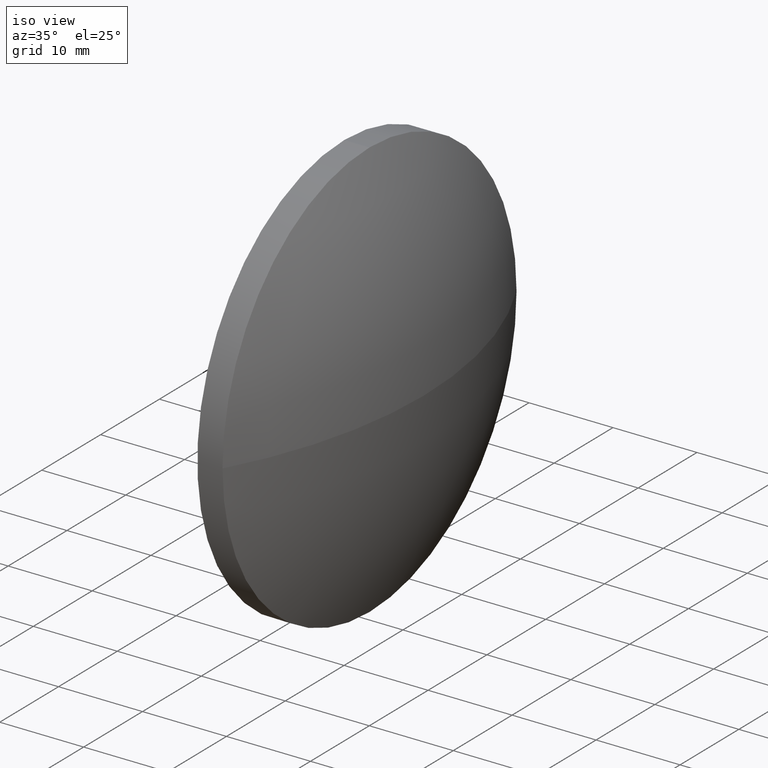
[diagram: clean part render]
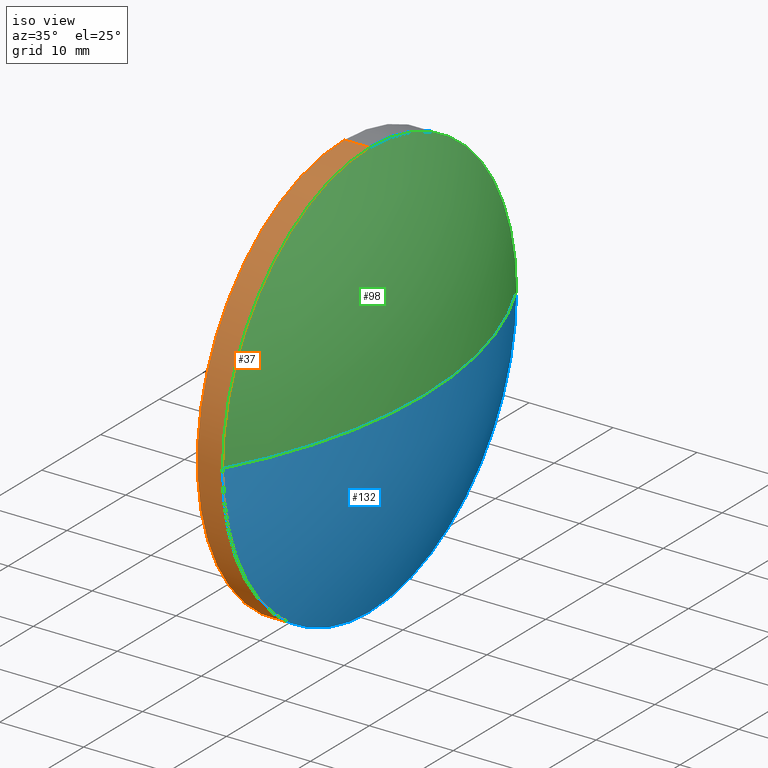
[diagram: same view with three faces highlighted in distinct colors, each labeled with its STEP entity id]
A machine part, iso view with three faces highlighted in distinct colors.
Their STEP definitions:

[orange] entity #37 — the highlighted cylindrical surface (partial cylindrical patch) has radius 25 mm, axis along (-1, -0, -0).
#1 = ORIENTED_EDGE ( 'NONE', *, *, #71, .T. ) ;
#2 = VERTEX_POINT ( 'NONE', #103 ) ;
#3 = CARTESIAN_POINT ( 'NONE',  ( 339.3126948403255500, 9.632589185674763900, -24.99999999999999600 ) ) ;
#5 = CARTESIAN_POINT ( 'NONE',  ( 339.3126948403255500, 9.632589185674760300, 0.0000000000000000000 ) ) ;
#6 = DIRECTION ( 'NONE',  ( -1.000000000000000000, -0.0000000000000000000, -0.0000000000000000000 ) ) ;
#8 = CARTESIAN_POINT ( 'NONE',  ( 346.2844701294416200, -15.36741081432525000, -3.061616997868383800E-015 ) ) ;
#15 = CIRCLE ( 'NONE', #74, 24.99999999999999600 ) ;
#18 = EDGE_CURVE ( 'NONE', #70, #2, #54, .T. ) ;
#26 = DIRECTION ( 'NONE',  ( -1.000000000000000000, -0.0000000000000000000, -0.0000000000000000000 ) ) ;
#29 = DIRECTION ( 'NONE',  ( 0.0000000000000000000, 0.0000000000000000000, 1.000000000000000000 ) ) ;
#32 = EDGE_CURVE ( 'NONE', #159, #133, #89, .T. ) ;
#34 = VECTOR ( 'NONE', #6, 1000.000000000000000 ) ;
#37 = ADVANCED_FACE ( 'NONE', ( #86 ), #67, .T. ) ;
#42 = VECTOR ( 'NONE', #26, 1000.000000000000000 ) ;
#43 = CARTESIAN_POINT ( 'NONE',  ( 343.2844701294416200, 9.632589185674760300, 24.99999999999999600 ) ) ;
#45 = CARTESIAN_POINT ( 'NONE',  ( 346.2844701294416200, 9.632589185674763900, -24.99999999999999600 ) ) ;
#54 = LINE ( 'NONE', #3, #42 ) ;
#60 = CARTESIAN_POINT ( 'NONE',  ( 346.2844701294416200, 9.632589185674760300, 0.0000000000000000000 ) ) ;
#67 = CYLINDRICAL_SURFACE ( 'NONE', #170, 24.99999999999999600 ) ;
#70 = VERTEX_POINT ( 'NONE', #45 ) ;
#71 = EDGE_CURVE ( 'NONE', #70, #159, #15, .T. ) ;
#73 = AXIS2_PLACEMENT_3D ( 'NONE', #157, #115, #29 ) ;
#74 = AXIS2_PLACEMENT_3D ( 'NONE', #176, #106, #129 ) ;
#78 = DIRECTION ( 'NONE',  ( -1.000000000000000000, -0.0000000000000000000, -0.0000000000000000000 ) ) ;
#83 = CARTESIAN_POINT ( 'NONE',  ( 339.3126948403255500, 9.632589185674760300, 24.99999999999999600 ) ) ;
#86 = FACE_OUTER_BOUND ( 'NONE', #172, .T. ) ;
#88 = LINE ( 'NONE', #83, #34 ) ;
#89 = CIRCLE ( 'NONE', #112, 24.99999999999999600 ) ;
#96 = ORIENTED_EDGE ( 'NONE', *, *, #182, .F. ) ;
#101 = ORIENTED_EDGE ( 'NONE', *, *, #18, .F. ) ;
#103 = CARTESIAN_POINT ( 'NONE',  ( 343.2844701294416200, 9.632589185674763900, -24.99999999999999600 ) ) ;
#106 = DIRECTION ( 'NONE',  ( -1.000000000000000000, -0.0000000000000000000, -0.0000000000000000000 ) ) ;
#108 = ORIENTED_EDGE ( 'NONE', *, *, #32, .T. ) ;
#109 = CIRCLE ( 'NONE', #73, 24.99999999999999600 ) ;
#111 = DIRECTION ( 'NONE',  ( 0.0000000000000000000, 0.0000000000000000000, 1.000000000000000000 ) ) ;
#112 = AXIS2_PLACEMENT_3D ( 'NONE', #60, #78, #111 ) ;
#113 = DIRECTION ( 'NONE',  ( 0.0000000000000000000, 0.0000000000000000000, 1.000000000000000000 ) ) ;
#115 = DIRECTION ( 'NONE',  ( -1.000000000000000000, -0.0000000000000000000, -0.0000000000000000000 ) ) ;
#128 = CARTESIAN_POINT ( 'NONE',  ( 346.2844701294416200, 9.632589185674760300, 24.99999999999999600 ) ) ;
#129 = DIRECTION ( 'NONE',  ( 0.0000000000000000000, 0.0000000000000000000, 1.000000000000000000 ) ) ;
#133 = VERTEX_POINT ( 'NONE', #128 ) ;
#139 = VERTEX_POINT ( 'NONE', #43 ) ;
#153 = DIRECTION ( 'NONE',  ( -1.000000000000000000, -0.0000000000000000000, -0.0000000000000000000 ) ) ;
#157 = CARTESIAN_POINT ( 'NONE',  ( 343.2844701294416200, 9.632589185674760300, 0.0000000000000000000 ) ) ;
#159 = VERTEX_POINT ( 'NONE', #8 ) ;
#170 = AXIS2_PLACEMENT_3D ( 'NONE', #5, #153, #113 ) ;
#172 = EDGE_LOOP ( 'NONE', ( #101, #1, #108, #178, #96 ) ) ;
#173 = EDGE_CURVE ( 'NONE', #133, #139, #88, .T. ) ;
#176 = CARTESIAN_POINT ( 'NONE',  ( 346.2844701294416200, 9.632589185674760300, 0.0000000000000000000 ) ) ;
#178 = ORIENTED_EDGE ( 'NONE', *, *, #173, .T. ) ;
#182 = EDGE_CURVE ( 'NONE', #2, #139, #109, .T. ) ;

[blue] entity #132 — the highlighted spherical surface has radius 51.6746 mm.
#7 = CARTESIAN_POINT ( 'NONE',  ( 301.0598577263408500, 9.632589185674756700, 0.0000000000000000000 ) ) ;
#8 = CARTESIAN_POINT ( 'NONE',  ( 346.2844701294416200, -15.36741081432525000, -3.061616997868383800E-015 ) ) ;
#9 = DIRECTION ( 'NONE',  ( -0.0000000000000000000, 0.0000000000000000000, 1.000000000000000000 ) ) ;
#10 = CARTESIAN_POINT ( 'NONE',  ( 346.2844701294416200, 9.632589185674760300, 0.0000000000000000000 ) ) ;
#15 = CIRCLE ( 'NONE', #74, 24.99999999999999600 ) ;
#19 = ORIENTED_EDGE ( 'NONE', *, *, #71, .F. ) ;
#21 = AXIS2_PLACEMENT_3D ( 'NONE', #10, #79, #155 ) ;
#25 = AXIS2_PLACEMENT_3D ( 'NONE', #7, #80, #92 ) ;
#30 = CARTESIAN_POINT ( 'NONE',  ( 301.0598577263408500, 9.632589185674756700, 0.0000000000000000000 ) ) ;
#40 = CIRCLE ( 'NONE', #55, 51.67461240310078100 ) ;
#45 = CARTESIAN_POINT ( 'NONE',  ( 346.2844701294416200, 9.632589185674763900, -24.99999999999999600 ) ) ;
#48 = DIRECTION ( 'NONE',  ( 1.000000000000000000, 0.0000000000000000000, 0.0000000000000000000 ) ) ;
#50 = AXIS2_PLACEMENT_3D ( 'NONE', #30, #93, #180 ) ;
#53 = ORIENTED_EDGE ( 'NONE', *, *, #167, .F. ) ;
#55 = AXIS2_PLACEMENT_3D ( 'NONE', #181, #9, #48 ) ;
#56 = CARTESIAN_POINT ( 'NONE',  ( 352.7344701294416600, 9.632589185674760300, 0.0000000000000000000 ) ) ;
#59 = VERTEX_POINT ( 'NONE', #56 ) ;
#64 = CIRCLE ( 'NONE', #21, 24.99999999999999600 ) ;
#69 = VERTEX_POINT ( 'NONE', #126 ) ;
#70 = VERTEX_POINT ( 'NONE', #45 ) ;
#71 = EDGE_CURVE ( 'NONE', #70, #159, #15, .T. ) ;
#74 = AXIS2_PLACEMENT_3D ( 'NONE', #176, #106, #129 ) ;
#75 = EDGE_CURVE ( 'NONE', #59, #159, #148, .T. ) ;
#77 = SPHERICAL_SURFACE ( 'NONE', #50, 51.67461240310078100 ) ;
#79 = DIRECTION ( 'NONE',  ( -1.000000000000000000, -0.0000000000000000000, -0.0000000000000000000 ) ) ;
#80 = DIRECTION ( 'NONE',  ( 0.0000000000000000000, 1.224646799147353200E-016, -1.000000000000000000 ) ) ;
#92 = DIRECTION ( 'NONE',  ( 0.0000000000000000000, 1.000000000000000000, 1.224646799147353200E-016 ) ) ;
#93 = DIRECTION ( 'NONE',  ( -0.0000000000000000000, 0.0000000000000000000, -1.000000000000000000 ) ) ;
#106 = DIRECTION ( 'NONE',  ( -1.000000000000000000, -0.0000000000000000000, -0.0000000000000000000 ) ) ;
#126 = CARTESIAN_POINT ( 'NONE',  ( 346.2844701294416200, 34.63258918567477500, 0.0000000000000000000 ) ) ;
#129 = DIRECTION ( 'NONE',  ( 0.0000000000000000000, 0.0000000000000000000, 1.000000000000000000 ) ) ;
#130 = FACE_OUTER_BOUND ( 'NONE', #163, .T. ) ;
#132 = ADVANCED_FACE ( 'NONE', ( #130 ), #77, .T. ) ;
#136 = ORIENTED_EDGE ( 'NONE', *, *, #75, .T. ) ;
#148 = CIRCLE ( 'NONE', #25, 51.67461240310078100 ) ;
#155 = DIRECTION ( 'NONE',  ( 0.0000000000000000000, 0.0000000000000000000, 1.000000000000000000 ) ) ;
#159 = VERTEX_POINT ( 'NONE', #8 ) ;
#160 = ORIENTED_EDGE ( 'NONE', *, *, #161, .F. ) ;
#161 = EDGE_CURVE ( 'NONE', #69, #70, #64, .T. ) ;
#163 = EDGE_LOOP ( 'NONE', ( #53, #136, #19, #160 ) ) ;
#167 = EDGE_CURVE ( 'NONE', #59, #69, #40, .T. ) ;
#176 = CARTESIAN_POINT ( 'NONE',  ( 346.2844701294416200, 9.632589185674760300, 0.0000000000000000000 ) ) ;
#180 = DIRECTION ( 'NONE',  ( 0.0000000000000000000, 1.000000000000000000, 0.0000000000000000000 ) ) ;
#181 = CARTESIAN_POINT ( 'NONE',  ( 301.0598577263408500, 9.632589185674756700, 0.0000000000000000000 ) ) ;

[green] entity #98 — the highlighted spherical surface has radius 51.6746 mm.
#7 = CARTESIAN_POINT ( 'NONE',  ( 301.0598577263408500, 9.632589185674756700, 0.0000000000000000000 ) ) ;
#8 = CARTESIAN_POINT ( 'NONE',  ( 346.2844701294416200, -15.36741081432525000, -3.061616997868383800E-015 ) ) ;
#9 = DIRECTION ( 'NONE',  ( -0.0000000000000000000, 0.0000000000000000000, 1.000000000000000000 ) ) ;
#11 = CIRCLE ( 'NONE', #175, 24.99999999999999600 ) ;
#14 = EDGE_CURVE ( 'NONE', #133, #69, #11, .T. ) ;
#17 = DIRECTION ( 'NONE',  ( 0.0000000000000000000, 0.0000000000000000000, 1.000000000000000000 ) ) ;
#25 = AXIS2_PLACEMENT_3D ( 'NONE', #7, #80, #92 ) ;
#32 = EDGE_CURVE ( 'NONE', #159, #133, #89, .T. ) ;
#40 = CIRCLE ( 'NONE', #55, 51.67461240310078100 ) ;
#48 = DIRECTION ( 'NONE',  ( 1.000000000000000000, 0.0000000000000000000, 0.0000000000000000000 ) ) ;
#49 = ORIENTED_EDGE ( 'NONE', *, *, #14, .F. ) ;
#55 = AXIS2_PLACEMENT_3D ( 'NONE', #181, #9, #48 ) ;
#56 = CARTESIAN_POINT ( 'NONE',  ( 352.7344701294416600, 9.632589185674760300, 0.0000000000000000000 ) ) ;
#59 = VERTEX_POINT ( 'NONE', #56 ) ;
#60 = CARTESIAN_POINT ( 'NONE',  ( 346.2844701294416200, 9.632589185674760300, 0.0000000000000000000 ) ) ;
#61 = DIRECTION ( 'NONE',  ( -1.000000000000000000, -0.0000000000000000000, -0.0000000000000000000 ) ) ;
#69 = VERTEX_POINT ( 'NONE', #126 ) ;
#75 = EDGE_CURVE ( 'NONE', #59, #159, #148, .T. ) ;
#78 = DIRECTION ( 'NONE',  ( -1.000000000000000000, -0.0000000000000000000, -0.0000000000000000000 ) ) ;
#80 = DIRECTION ( 'NONE',  ( 0.0000000000000000000, 1.224646799147353200E-016, -1.000000000000000000 ) ) ;
#84 = EDGE_LOOP ( 'NONE', ( #104, #118, #49, #162 ) ) ;
#89 = CIRCLE ( 'NONE', #112, 24.99999999999999600 ) ;
#91 = CARTESIAN_POINT ( 'NONE',  ( 346.2844701294416200, 9.632589185674760300, 0.0000000000000000000 ) ) ;
#92 = DIRECTION ( 'NONE',  ( 0.0000000000000000000, 1.000000000000000000, 1.224646799147353200E-016 ) ) ;
#95 = AXIS2_PLACEMENT_3D ( 'NONE', #168, #179, #105 ) ;
#98 = ADVANCED_FACE ( 'NONE', ( #125 ), #184, .T. ) ;
#104 = ORIENTED_EDGE ( 'NONE', *, *, #75, .F. ) ;
#105 = DIRECTION ( 'NONE',  ( 0.0000000000000000000, 1.000000000000000000, 0.0000000000000000000 ) ) ;
#111 = DIRECTION ( 'NONE',  ( 0.0000000000000000000, 0.0000000000000000000, 1.000000000000000000 ) ) ;
#112 = AXIS2_PLACEMENT_3D ( 'NONE', #60, #78, #111 ) ;
#118 = ORIENTED_EDGE ( 'NONE', *, *, #167, .T. ) ;
#125 = FACE_OUTER_BOUND ( 'NONE', #84, .T. ) ;
#126 = CARTESIAN_POINT ( 'NONE',  ( 346.2844701294416200, 34.63258918567477500, 0.0000000000000000000 ) ) ;
#128 = CARTESIAN_POINT ( 'NONE',  ( 346.2844701294416200, 9.632589185674760300, 24.99999999999999600 ) ) ;
#133 = VERTEX_POINT ( 'NONE', #128 ) ;
#148 = CIRCLE ( 'NONE', #25, 51.67461240310078100 ) ;
#159 = VERTEX_POINT ( 'NONE', #8 ) ;
#162 = ORIENTED_EDGE ( 'NONE', *, *, #32, .F. ) ;
#167 = EDGE_CURVE ( 'NONE', #59, #69, #40, .T. ) ;
#168 = CARTESIAN_POINT ( 'NONE',  ( 301.0598577263408500, 9.632589185674756700, 0.0000000000000000000 ) ) ;
#175 = AXIS2_PLACEMENT_3D ( 'NONE', #91, #61, #17 ) ;
#179 = DIRECTION ( 'NONE',  ( -0.0000000000000000000, 0.0000000000000000000, -1.000000000000000000 ) ) ;
#181 = CARTESIAN_POINT ( 'NONE',  ( 301.0598577263408500, 9.632589185674756700, 0.0000000000000000000 ) ) ;
#184 = SPHERICAL_SURFACE ( 'NONE', #95, 51.67461240310078100 ) ;